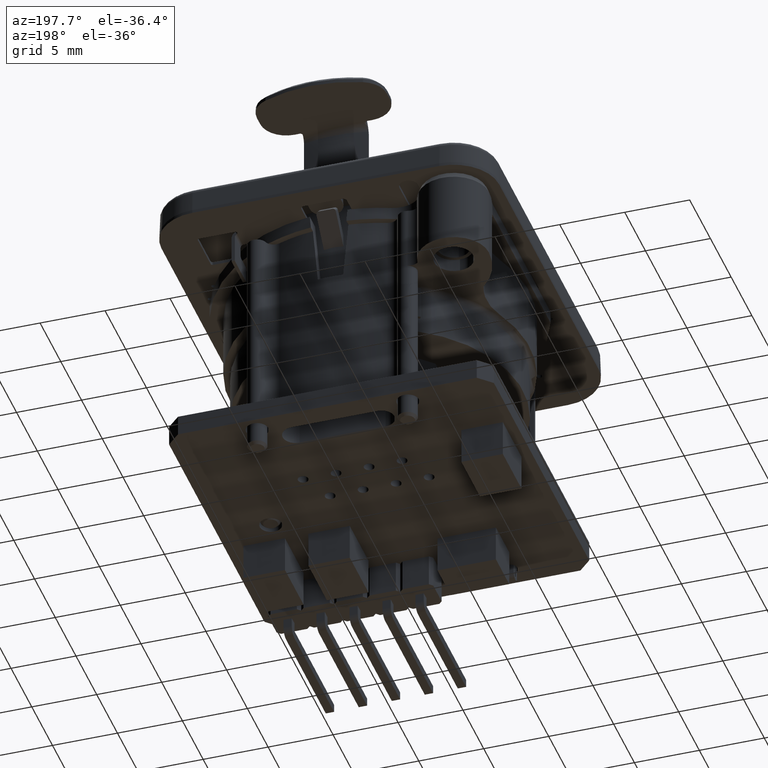
[diagram: clean part render]
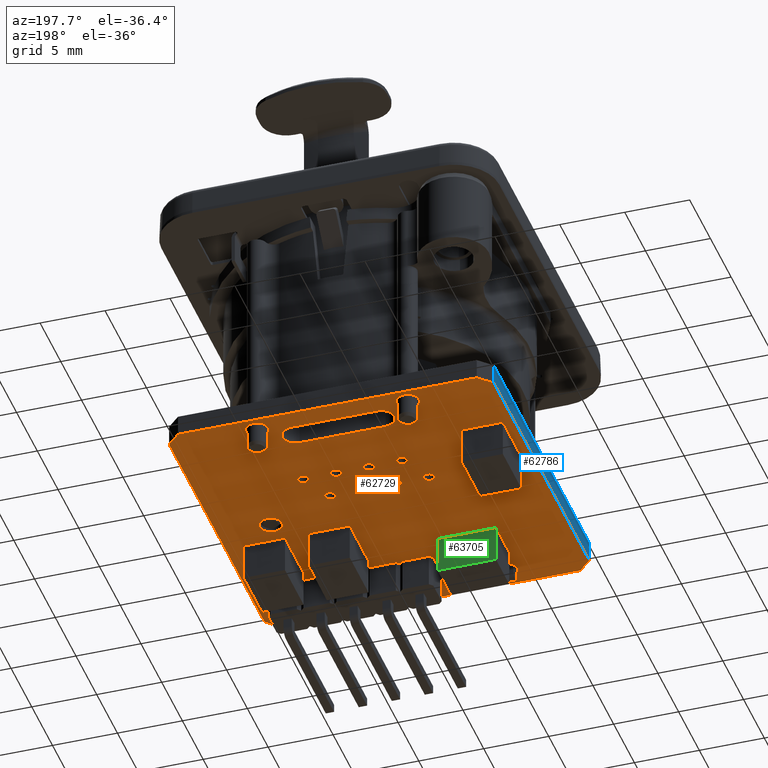
[diagram: same view with three faces highlighted in distinct colors, each labeled with its STEP entity id]
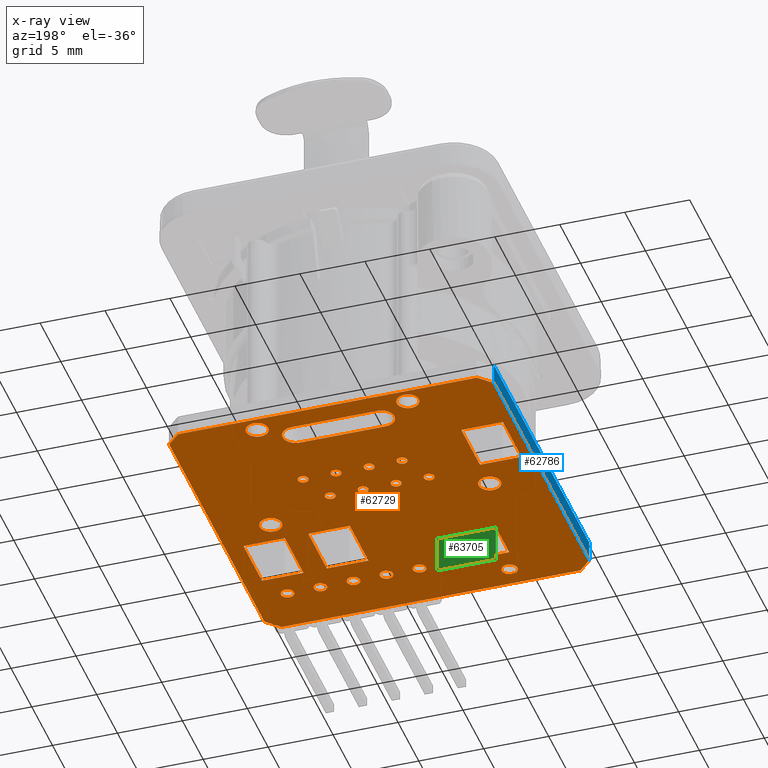
[diagram: x-ray of the same camera — body ghosted, the three highlighted faces saturated]
A machine part, auxiliary view with three faces highlighted in distinct colors.
The next image is the same camera in x-ray (body ghosted, the three faces saturated) — at least one of them is partly hidden behind the body in this view.
Their STEP definitions:

[orange] entity #62729 — the highlighted planar face has unit normal (0, 0, 1).
#61397=DIRECTION('',(-7.071067812296E-1,-7.071067811435E-1,0.E0));
#61398=VECTOR('',#61397,1.414213562287E0);
#61399=CARTESIAN_POINT('',(1.2491E1,-1.125600000012E1,-2.26E1));
#61400=LINE('',#61399,#61398);
#61401=DIRECTION('',(0.E0,1.E0,0.E0));
#61402=VECTOR('',#61401,2.300000000028E1);
#61403=CARTESIAN_POINT('',(1.2491E1,-1.125600000012E1,-2.26E1));
#61404=LINE('',#61403,#61402);
#61405=DIRECTION('',(-7.071067811435E-1,7.071067812296E-1,0.E0));
#61406=VECTOR('',#61405,1.414213562059E0);
#61407=CARTESIAN_POINT('',(1.2491E1,1.174400000016E1,-2.26E1));
#61408=LINE('',#61407,#61406);
#61409=DIRECTION('',(-1.E0,0.E0,0.E0));
#61410=VECTOR('',#61409,2.300000000028E1);
#61411=CARTESIAN_POINT('',(1.149100000028E1,1.2744E1,-2.26E1));
#61412=LINE('',#61411,#61410);
#61413=DIRECTION('',(-7.071067812296E-1,-7.071067811435E-1,0.E0));
#61414=VECTOR('',#61413,1.414213562287E0);
#61415=CARTESIAN_POINT('',(-1.1509E1,1.2744E1,-2.26E1));
#61416=LINE('',#61415,#61414);
#61417=DIRECTION('',(0.E0,-1.E0,0.E0));
#61418=VECTOR('',#61417,2.300000000028E1);
#61419=CARTESIAN_POINT('',(-1.2509E1,1.174400000012E1,-2.26E1));
#61420=LINE('',#61419,#61418);
#61421=DIRECTION('',(7.071067811437E-1,-7.071067812294E-1,0.E0));
#61422=VECTOR('',#61421,1.414213562058E0);
#61423=CARTESIAN_POINT('',(-1.2509E1,-1.125600000016E1,-2.26E1));
#61424=LINE('',#61423,#61422);
#61425=DIRECTION('',(1.E0,0.E0,0.E0));
#61426=VECTOR('',#61425,2.300000000028E1);
#61427=CARTESIAN_POINT('',(-1.150900000028E1,-1.2256E1,-2.26E1));
#61428=LINE('',#61427,#61426);
#61429=DIRECTION('',(1.E0,0.E0,0.E0));
#61430=VECTOR('',#61429,6.599940000221E0);
#61431=CARTESIAN_POINT('',(-3.309930000181E0,9.049959999996E0,-2.26E1));
#61432=LINE('',#61431,#61430);
#61433=CARTESIAN_POINT('',(-3.309930989898E0,1.005297098971E1,-2.26E1));
#61434=DIRECTION('',(0.E0,0.E0,1.E0));
#61435=DIRECTION('',(-9.999999999995E-1,-9.808002866725E-7,0.E0));
#61436=AXIS2_PLACEMENT_3D('',#61433,#61434,#61435);
#61438=CARTESIAN_POINT('',(-3.309930989898E0,1.005297098971E1,-2.26E1));
#61439=DIRECTION('',(0.E0,0.E0,-1.E0));
#61440=DIRECTION('',(-9.999999999995E-1,-9.808002299998E-7,0.E0));
#61441=AXIS2_PLACEMENT_3D('',#61438,#61439,#61440);
#61443=DIRECTION('',(-9.999999036746E-1,-4.389200399742E-4,0.E0));
#61444=VECTOR('',#61443,6.734003167075E0);
#61445=CARTESIAN_POINT('',(3.290009984323E0,1.104993802056E1,-2.26E1));
#61446=LINE('',#61445,#61444);
#61447=CARTESIAN_POINT('',(3.290010989711E0,1.004994901028E1,-2.26E1));
#61448=DIRECTION('',(0.E0,0.E0,-1.E0));
#61449=DIRECTION('',(-1.005398978406E-6,9.999999999995E-1,0.E0));
#61450=AXIS2_PLACEMENT_3D('',#61447,#61448,#61449);
#61452=CARTESIAN_POINT('',(3.290010989711E0,1.004994901028E1,-2.26E1));
#61453=DIRECTION('',(0.E0,0.E0,-1.E0));
#61454=DIRECTION('',(9.999999999995E-1,9.899275929603E-7,0.E0));
#61455=AXIS2_PLACEMENT_3D('',#61452,#61453,#61454);
#61457=CARTESIAN_POINT('',(5.79E0,1.15E1,-2.26E1));
#61458=DIRECTION('',(0.E0,0.E0,-1.E0));
#61459=DIRECTION('',(-1.E0,1.337492208490E-13,0.E0));
#61460=AXIS2_PLACEMENT_3D('',#61457,#61458,#61459);
#61462=CARTESIAN_POINT('',(5.79E0,1.15E1,-2.26E1));
#61463=DIRECTION('',(0.E0,0.E0,-1.E0));
#61464=DIRECTION('',(1.E0,1.337492208490E-13,0.E0));
#61465=AXIS2_PLACEMENT_3D('',#61462,#61463,#61464);
#61467=CARTESIAN_POINT('',(-5.81E0,1.15E1,-2.26E1));
#61468=DIRECTION('',(0.E0,0.E0,-1.E0));
#61469=DIRECTION('',(-1.E0,1.337492208490E-13,0.E0));
#61470=AXIS2_PLACEMENT_3D('',#61467,#61468,#61469);
#61472=CARTESIAN_POINT('',(-5.81E0,1.15E1,-2.26E1));
#61473=DIRECTION('',(0.E0,0.E0,-1.E0));
#61474=DIRECTION('',(1.E0,1.337492208490E-13,0.E0));
#61475=AXIS2_PLACEMENT_3D('',#61472,#61473,#61474);
#61477=CARTESIAN_POINT('',(-3.390000000001E-1,-8.436E0,-2.26E1));
#61478=DIRECTION('',(0.E0,0.E0,-1.E0));
#61479=DIRECTION('',(1.E0,0.E0,0.E0));
#61480=AXIS2_PLACEMENT_3D('',#61477,#61478,#61479);
#61482=CARTESIAN_POINT('',(-3.390000000001E-1,-8.436E0,-2.26E1));
#61483=DIRECTION('',(0.E0,0.E0,-1.E0));
#61484=DIRECTION('',(-1.E0,2.842170943040E-13,0.E0));
#61485=AXIS2_PLACEMENT_3D('',#61482,#61483,#61484);
#61487=CARTESIAN_POINT('',(-6.61E0,-1.055E1,-2.26E1));
#61488=DIRECTION('',(0.E0,0.E0,-1.E0));
#61489=DIRECTION('',(-1.E0,2.842170943041E-13,0.E0));
#61490=AXIS2_PLACEMENT_3D('',#61487,#61488,#61489);
#61492=CARTESIAN_POINT('',(-6.61E0,-1.055E1,-2.26E1));
#61493=DIRECTION('',(0.E0,0.E0,-1.E0));
#61494=DIRECTION('',(1.E0,-4.736951571734E-14,0.E0));
#61495=AXIS2_PLACEMENT_3D('',#61492,#61493,#61494);
#61497=CARTESIAN_POINT('',(-8.44E0,1.989519660128E-13,-2.26E1));
#61498=DIRECTION('',(0.E0,0.E0,-1.E0));
#61499=DIRECTION('',(-1.E0,-6.687461042448E-14,0.E0));
#61500=AXIS2_PLACEMENT_3D('',#61497,#61498,#61499);
#61502=CARTESIAN_POINT('',(-8.44E0,1.421085471520E-13,-2.26E1));
#61503=DIRECTION('',(0.E0,0.E0,-1.E0));
#61504=DIRECTION('',(1.E0,0.E0,0.E0));
#61505=AXIS2_PLACEMENT_3D('',#61502,#61503,#61504);
#61507=CARTESIAN_POINT('',(8.41E0,1.421085471520E-13,-2.26E1));
#61508=DIRECTION('',(0.E0,0.E0,-1.E0));
#61509=DIRECTION('',(-1.E0,0.E0,0.E0));
#61510=AXIS2_PLACEMENT_3D('',#61507,#61508,#61509);
#61512=CARTESIAN_POINT('',(8.41E0,1.421085471520E-13,-2.26E1));
#61513=DIRECTION('',(0.E0,0.E0,-1.E0));
#61514=DIRECTION('',(1.E0,0.E0,0.E0));
#61515=AXIS2_PLACEMENT_3D('',#61512,#61513,#61514);
#61517=CARTESIAN_POINT('',(-4.45E0,2.11E0,-2.26E1));
#61518=DIRECTION('',(0.E0,0.E0,-1.E0));
#61519=DIRECTION('',(1.E0,0.E0,0.E0));
#61520=AXIS2_PLACEMENT_3D('',#61517,#61518,#61519);
#61522=CARTESIAN_POINT('',(-4.45E0,2.11E0,-2.26E1));
#61523=DIRECTION('',(0.E0,0.E0,-1.E0));
#61524=DIRECTION('',(-1.E0,-2.131628207280E-13,0.E0));
#61525=AXIS2_PLACEMENT_3D('',#61522,#61523,#61524);
#61527=CARTESIAN_POINT('',(-3.18E0,4.65E0,-2.26E1));
#61528=DIRECTION('',(0.E0,0.E0,-1.E0));
#61529=DIRECTION('',(-1.E0,0.E0,0.E0));
#61530=AXIS2_PLACEMENT_3D('',#61527,#61528,#61529);
#61532=CARTESIAN_POINT('',(-3.18E0,4.65E0,-2.26E1));
#61533=DIRECTION('',(0.E0,0.E0,-1.E0));
#61534=DIRECTION('',(1.E0,0.E0,0.E0));
#61535=AXIS2_PLACEMENT_3D('',#61532,#61533,#61534);
#61537=CARTESIAN_POINT('',(-1.91E0,2.11E0,-2.26E1));
#61538=DIRECTION('',(0.E0,0.E0,-1.E0));
#61539=DIRECTION('',(1.E0,0.E0,0.E0));
#61540=AXIS2_PLACEMENT_3D('',#61537,#61538,#61539);
#61542=CARTESIAN_POINT('',(-1.91E0,2.11E0,-2.26E1));
#61543=DIRECTION('',(0.E0,0.E0,-1.E0));
#61544=DIRECTION('',(-1.E0,0.E0,0.E0));
#61545=AXIS2_PLACEMENT_3D('',#61542,#61543,#61544);
#61547=CARTESIAN_POINT('',(-6.400000000001E-1,4.65E0,-2.26E1));
#61548=DIRECTION('',(0.E0,0.E0,-1.E0));
#61549=DIRECTION('',(-1.E0,-1.421085471520E-13,0.E0));
#61550=AXIS2_PLACEMENT_3D('',#61547,#61548,#61549);
#61552=CARTESIAN_POINT('',(-6.400000000001E-1,4.65E0,-2.26E1));
#61553=DIRECTION('',(0.E0,0.E0,-1.E0));
#61554=DIRECTION('',(1.E0,1.421085471520E-13,0.E0));
#61555=AXIS2_PLACEMENT_3D('',#61552,#61553,#61554);
#61557=CARTESIAN_POINT('',(6.299999999999E-1,2.11E0,-2.26E1));
#61558=DIRECTION('',(0.E0,0.E0,-1.E0));
#61559=DIRECTION('',(-1.E0,0.E0,0.E0));
#61560=AXIS2_PLACEMENT_3D('',#61557,#61558,#61559);
#61562=CARTESIAN_POINT('',(6.299999999999E-1,2.11E0,-2.26E1));
#61563=DIRECTION('',(0.E0,0.E0,-1.E0));
#61564=DIRECTION('',(1.E0,0.E0,0.E0));
#61565=AXIS2_PLACEMENT_3D('',#61562,#61563,#61564);
#61567=CARTESIAN_POINT('',(3.17E0,2.11E0,-2.26E1));
#61568=DIRECTION('',(0.E0,0.E0,-1.E0));
#61569=DIRECTION('',(-1.E0,-2.131628207280E-13,0.E0));
#61570=AXIS2_PLACEMENT_3D('',#61567,#61568,#61569);
#61572=CARTESIAN_POINT('',(3.17E0,2.11E0,-2.26E1));
#61573=DIRECTION('',(0.E0,0.E0,-1.E0));
#61574=DIRECTION('',(1.E0,0.E0,0.E0));
#61575=AXIS2_PLACEMENT_3D('',#61572,#61573,#61574);
#61577=CARTESIAN_POINT('',(1.9E0,4.65E0,-2.26E1));
#61578=DIRECTION('',(0.E0,0.E0,-1.E0));
#61579=DIRECTION('',(-1.E0,1.421085471520E-13,0.E0));
#61580=AXIS2_PLACEMENT_3D('',#61577,#61578,#61579);
#61582=CARTESIAN_POINT('',(1.9E0,4.65E0,-2.26E1));
#61583=DIRECTION('',(0.E0,0.E0,-1.E0));
#61584=DIRECTION('',(1.E0,0.E0,0.E0));
#61585=AXIS2_PLACEMENT_3D('',#61582,#61583,#61584);
#61587=CARTESIAN_POINT('',(4.44E0,4.65E0,-2.26E1));
#61588=DIRECTION('',(0.E0,0.E0,-1.E0));
#61589=DIRECTION('',(-1.E0,0.E0,0.E0));
#61590=AXIS2_PLACEMENT_3D('',#61587,#61588,#61589);
#61592=CARTESIAN_POINT('',(4.44E0,4.65E0,-2.26E1));
#61593=DIRECTION('',(0.E0,0.E0,-1.E0));
#61594=DIRECTION('',(1.E0,1.421085471520E-13,0.E0));
#61595=AXIS2_PLACEMENT_3D('',#61592,#61593,#61594);
#61597=CARTESIAN_POINT('',(2.201E0,-8.436E0,-2.26E1));
#61598=DIRECTION('',(0.E0,0.E0,-1.E0));
#61599=DIRECTION('',(-1.E0,0.E0,0.E0));
#61600=AXIS2_PLACEMENT_3D('',#61597,#61598,#61599);
#61602=CARTESIAN_POINT('',(2.201E0,-8.436E0,-2.26E1));
#61603=DIRECTION('',(0.E0,0.E0,-1.E0));
#61604=DIRECTION('',(1.E0,0.E0,0.E0));
#61605=AXIS2_PLACEMENT_3D('',#61602,#61603,#61604);
#61607=CARTESIAN_POINT('',(4.741E0,-8.436E0,-2.26E1));
#61608=DIRECTION('',(0.E0,0.E0,-1.E0));
#61609=DIRECTION('',(-1.E0,0.E0,0.E0));
#61610=AXIS2_PLACEMENT_3D('',#61607,#61608,#61609);
#61612=CARTESIAN_POINT('',(4.741E0,-8.436E0,-2.26E1));
#61613=DIRECTION('',(0.E0,0.E0,-1.E0));
#61614=DIRECTION('',(1.E0,0.E0,0.E0));
#61615=AXIS2_PLACEMENT_3D('',#61612,#61613,#61614);
#61617=CARTESIAN_POINT('',(7.281E0,-8.436E0,-2.26E1));
#61618=DIRECTION('',(0.E0,0.E0,-1.E0));
#61619=DIRECTION('',(-1.E0,5.684341886081E-14,0.E0));
#61620=AXIS2_PLACEMENT_3D('',#61617,#61618,#61619);
#61622=CARTESIAN_POINT('',(7.281E0,-8.436E0,-2.26E1));
#61623=DIRECTION('',(0.E0,0.E0,-1.E0));
#61624=DIRECTION('',(1.E0,0.E0,0.E0));
#61625=AXIS2_PLACEMENT_3D('',#61622,#61623,#61624);
#61627=CARTESIAN_POINT('',(9.821E0,-8.436E0,-2.26E1));
#61628=DIRECTION('',(0.E0,0.E0,-1.E0));
#61629=DIRECTION('',(-1.E0,-1.705302565824E-13,0.E0));
#61630=AXIS2_PLACEMENT_3D('',#61627,#61628,#61629);
#61632=CARTESIAN_POINT('',(9.821E0,-8.436E0,-2.26E1));
#61633=DIRECTION('',(0.E0,0.E0,-1.E0));
#61634=DIRECTION('',(1.E0,0.E0,0.E0));
#61635=AXIS2_PLACEMENT_3D('',#61632,#61633,#61634);
#61637=DIRECTION('',(1.E0,0.E0,0.E0));
#61638=VECTOR('',#61637,3.2E0);
#61639=CARTESIAN_POINT('',(7.917E0,-1.866E0,-2.26E1));
#61640=LINE('',#61639,#61638);
#61641=DIRECTION('',(0.E0,-1.E0,0.E0));
#61642=VECTOR('',#61641,4.5E0);
#61643=CARTESIAN_POINT('',(1.1117E1,-1.866E0,-2.26E1));
#61644=LINE('',#61643,#61642);
#61645=DIRECTION('',(-1.E0,0.E0,0.E0));
#61646=VECTOR('',#61645,3.2E0);
#61647=CARTESIAN_POINT('',(1.1117E1,-6.366E0,-2.26E1));
#61648=LINE('',#61647,#61646);
#61649=DIRECTION('',(0.E0,1.E0,0.E0));
#61650=VECTOR('',#61649,4.5E0);
#61651=CARTESIAN_POINT('',(7.917E0,-6.366E0,-2.26E1));
#61652=LINE('',#61651,#61650);
#61653=DIRECTION('',(1.E0,0.E0,0.E0));
#61654=VECTOR('',#61653,3.2E0);
#61655=CARTESIAN_POINT('',(2.927E0,-1.866E0,-2.26E1));
#61656=LINE('',#61655,#61654);
#61657=DIRECTION('',(0.E0,-1.E0,0.E0));
#61658=VECTOR('',#61657,4.5E0);
#61659=CARTESIAN_POINT('',(6.127E0,-1.866E0,-2.26E1));
#61660=LINE('',#61659,#61658);
#61661=DIRECTION('',(-1.E0,0.E0,0.E0));
#61662=VECTOR('',#61661,3.2E0);
#61663=CARTESIAN_POINT('',(6.127E0,-6.366E0,-2.26E1));
#61664=LINE('',#61663,#61662);
#61665=DIRECTION('',(0.E0,1.E0,0.E0));
#61666=VECTOR('',#61665,4.5E0);
#61667=CARTESIAN_POINT('',(2.927E0,-6.366E0,-2.26E1));
#61668=LINE('',#61667,#61666);
#61669=DIRECTION('',(0.E0,-1.E0,0.E0));
#61670=VECTOR('',#61669,3.205E0);
#61671=CARTESIAN_POINT('',(-2.718764615385E0,-5.316E0,-2.26E1));
#61672=LINE('',#61671,#61670);
#61673=DIRECTION('',(-1.E0,0.E0,0.E0));
#61674=VECTOR('',#61673,4.5E0);
#61675=CARTESIAN_POINT('',(-2.718764615385E0,-8.521E0,-2.26E1));
#61676=LINE('',#61675,#61674);
#61677=DIRECTION('',(0.E0,1.E0,0.E0));
#61678=VECTOR('',#61677,3.205E0);
#61679=CARTESIAN_POINT('',(-7.218764615385E0,-8.521E0,-2.26E1));
#61680=LINE('',#61679,#61678);
#61681=DIRECTION('',(1.E0,0.E0,0.E0));
#61682=VECTOR('',#61681,4.5E0);
#61683=CARTESIAN_POINT('',(-7.218764615385E0,-5.316E0,-2.26E1));
#61684=LINE('',#61683,#61682);
#61685=DIRECTION('',(0.E0,-1.E0,0.E0));
#61686=VECTOR('',#61685,4.5E0);
#61687=CARTESIAN_POINT('',(-8.463764615385E0,6.934E0,-2.26E1));
#61688=LINE('',#61687,#61686);
#61689=DIRECTION('',(-1.E0,0.E0,0.E0));
#61690=VECTOR('',#61689,3.2E0);
#61691=CARTESIAN_POINT('',(-8.463764615385E0,2.434E0,-2.26E1));
#61692=LINE('',#61691,#61690);
#61693=DIRECTION('',(0.E0,1.E0,0.E0));
#61694=VECTOR('',#61693,4.5E0);
#61695=CARTESIAN_POINT('',(-1.166376461538E1,2.434E0,-2.26E1));
#61696=LINE('',#61695,#61694);
#61697=DIRECTION('',(1.E0,0.E0,0.E0));
#61698=VECTOR('',#61697,3.2E0);
#61699=CARTESIAN_POINT('',(-1.166376461538E1,6.934E0,-2.26E1));
#61700=LINE('',#61699,#61698);
#62265=CARTESIAN_POINT('',(1.2491E1,-1.125600000012E1,-2.26E1));
#62266=CARTESIAN_POINT('',(1.1491E1,-1.2256E1,-2.26E1));
#62267=VERTEX_POINT('',#62265);
#62268=VERTEX_POINT('',#62266);
#62269=CARTESIAN_POINT('',(3.290009984323E0,1.104993802056E1,-2.26E1));
#62270=CARTESIAN_POINT('',(-3.443992534096E0,1.104698233162E1,-2.26E1));
#62271=VERTEX_POINT('',#62269);
#62272=VERTEX_POINT('',#62270);
#62273=CARTESIAN_POINT('',(-4.312941979608E0,1.005297000595E1,-2.26E1));
#62274=CARTESIAN_POINT('',(-3.309930000181E0,9.049959999996E0,-2.26E1));
#62275=VERTEX_POINT('',#62273);
#62276=VERTEX_POINT('',#62274);
#62277=CARTESIAN_POINT('',(3.290010000041E0,9.049959999996E0,-2.26E1));
#62278=VERTEX_POINT('',#62277);
#62293=CARTESIAN_POINT('',(1.2491E1,1.174400000016E1,-2.26E1));
#62294=VERTEX_POINT('',#62293);
#62295=CARTESIAN_POINT('',(1.149100000028E1,1.2744E1,-2.26E1));
#62296=VERTEX_POINT('',#62295);
#62297=CARTESIAN_POINT('',(-1.1509E1,1.2744E1,-2.26E1));
#62298=VERTEX_POINT('',#62297);
#62299=CARTESIAN_POINT('',(-1.2509E1,1.174400000012E1,-2.26E1));
#62300=VERTEX_POINT('',#62299);
#62301=CARTESIAN_POINT('',(-1.2509E1,-1.125600000016E1,-2.26E1));
#62302=VERTEX_POINT('',#62301);
#62303=CARTESIAN_POINT('',(-1.150900000028E1,-1.2256E1,-2.26E1));
#62304=VERTEX_POINT('',#62303);
#62305=CARTESIAN_POINT('',(4.289999999991E0,1.004995000019E1,-2.26E1));
#62306=VERTEX_POINT('',#62305);
#62307=CARTESIAN_POINT('',(4.94E0,1.15E1,-2.26E1));
#62308=CARTESIAN_POINT('',(6.64E0,1.15E1,-2.26E1));
#62309=VERTEX_POINT('',#62307);
#62310=VERTEX_POINT('',#62308);
#62311=CARTESIAN_POINT('',(-6.66E0,1.15E1,-2.26E1));
#62312=CARTESIAN_POINT('',(-4.96E0,1.15E1,-2.26E1));
#62313=VERTEX_POINT('',#62311);
#62314=VERTEX_POINT('',#62312);
#62315=CARTESIAN_POINT('',(1.609999999999E-1,-8.436E0,-2.26E1));
#62316=CARTESIAN_POINT('',(-8.390000000001E-1,-8.436E0,-2.26E1));
#62317=VERTEX_POINT('',#62315);
#62318=VERTEX_POINT('',#62316);
#62319=CARTESIAN_POINT('',(-7.21E0,-1.055E1,-2.26E1));
#62320=CARTESIAN_POINT('',(-6.01E0,-1.055E1,-2.26E1));
#62321=VERTEX_POINT('',#62319);
#62322=VERTEX_POINT('',#62320);
#62323=CARTESIAN_POINT('',(-9.29E0,1.421085471520E-13,-2.26E1));
#62324=CARTESIAN_POINT('',(-7.59E0,1.422792555114E-13,-2.26E1));
#62325=VERTEX_POINT('',#62323);
#62326=VERTEX_POINT('',#62324);
#62327=CARTESIAN_POINT('',(7.56E0,1.421085471520E-13,-2.26E1));
#62328=CARTESIAN_POINT('',(9.26E0,1.422126421299E-13,-2.26E1));
#62329=VERTEX_POINT('',#62327);
#62330=VERTEX_POINT('',#62328);
#62331=CARTESIAN_POINT('',(-4.05E0,2.11E0,-2.26E1));
#62332=CARTESIAN_POINT('',(-4.85E0,2.11E0,-2.26E1));
#62333=VERTEX_POINT('',#62331);
#62334=VERTEX_POINT('',#62332);
#62335=CARTESIAN_POINT('',(-3.58E0,4.65E0,-2.26E1));
#62336=CARTESIAN_POINT('',(-2.78E0,4.65E0,-2.26E1));
#62337=VERTEX_POINT('',#62335);
#62338=VERTEX_POINT('',#62336);
#62339=CARTESIAN_POINT('',(-1.51E0,2.11E0,-2.26E1));
#62340=CARTESIAN_POINT('',(-2.31E0,2.11E0,-2.26E1));
#62341=VERTEX_POINT('',#62339);
#62342=VERTEX_POINT('',#62340);
#62343=CARTESIAN_POINT('',(-1.04E0,4.65E0,-2.26E1));
#62344=CARTESIAN_POINT('',(-2.400000000001E-1,4.65E0,-2.26E1));
#62345=VERTEX_POINT('',#62343);
#62346=VERTEX_POINT('',#62344);
#62347=CARTESIAN_POINT('',(2.299999999999E-1,2.11E0,-2.26E1));
#62348=CARTESIAN_POINT('',(1.03E0,2.11E0,-2.26E1));
#62349=VERTEX_POINT('',#62347);
#62350=VERTEX_POINT('',#62348);
#62351=CARTESIAN_POINT('',(2.77E0,2.11E0,-2.26E1));
#62352=CARTESIAN_POINT('',(3.57E0,2.11E0,-2.26E1));
#62353=VERTEX_POINT('',#62351);
#62354=VERTEX_POINT('',#62352);
#62355=CARTESIAN_POINT('',(1.5E0,4.65E0,-2.26E1));
#62356=CARTESIAN_POINT('',(2.3E0,4.65E0,-2.26E1));
#62357=VERTEX_POINT('',#62355);
#62358=VERTEX_POINT('',#62356);
#62359=CARTESIAN_POINT('',(4.04E0,4.65E0,-2.26E1));
#62360=CARTESIAN_POINT('',(4.84E0,4.65E0,-2.26E1));
#62361=VERTEX_POINT('',#62359);
#62362=VERTEX_POINT('',#62360);
#62363=CARTESIAN_POINT('',(1.701E0,-8.436E0,-2.26E1));
#62364=CARTESIAN_POINT('',(2.701E0,-8.436E0,-2.26E1));
#62365=VERTEX_POINT('',#62363);
#62366=VERTEX_POINT('',#62364);
#62367=CARTESIAN_POINT('',(4.241E0,-8.436E0,-2.26E1));
#62368=CARTESIAN_POINT('',(5.241E0,-8.436E0,-2.26E1));
#62369=VERTEX_POINT('',#62367);
#62370=VERTEX_POINT('',#62368);
#62371=CARTESIAN_POINT('',(6.781E0,-8.436E0,-2.26E1));
#62372=CARTESIAN_POINT('',(7.781E0,-8.436E0,-2.26E1));
#62373=VERTEX_POINT('',#62371);
#62374=VERTEX_POINT('',#62372);
#62375=CARTESIAN_POINT('',(9.321E0,-8.436E0,-2.26E1));
#62376=CARTESIAN_POINT('',(1.0321E1,-8.436E0,-2.26E1));
#62377=VERTEX_POINT('',#62375);
#62378=VERTEX_POINT('',#62376);
#62497=CARTESIAN_POINT('',(7.917E0,-1.866E0,-2.26E1));
#62498=CARTESIAN_POINT('',(1.1117E1,-1.866E0,-2.26E1));
#62499=VERTEX_POINT('',#62497);
#62500=VERTEX_POINT('',#62498);
#62501=CARTESIAN_POINT('',(1.1117E1,-6.366E0,-2.26E1));
#62502=VERTEX_POINT('',#62501);
#62503=CARTESIAN_POINT('',(7.917E0,-6.366E0,-2.26E1));
#62504=VERTEX_POINT('',#62503);
#62505=CARTESIAN_POINT('',(2.927E0,-1.866E0,-2.26E1));
#62506=CARTESIAN_POINT('',(6.127E0,-1.866E0,-2.26E1));
#62507=VERTEX_POINT('',#62505);
#62508=VERTEX_POINT('',#62506);
#62509=CARTESIAN_POINT('',(6.127E0,-6.366E0,-2.26E1));
#62510=VERTEX_POINT('',#62509);
#62511=CARTESIAN_POINT('',(2.927E0,-6.366E0,-2.26E1));
#62512=VERTEX_POINT('',#62511);
#62513=CARTESIAN_POINT('',(-2.718764615385E0,-5.316E0,-2.26E1));
#62514=CARTESIAN_POINT('',(-2.718764615385E0,-8.521E0,-2.26E1));
#62515=VERTEX_POINT('',#62513);
#62516=VERTEX_POINT('',#62514);
#62517=CARTESIAN_POINT('',(-7.218764615385E0,-8.521E0,-2.26E1));
#62518=VERTEX_POINT('',#62517);
#62519=CARTESIAN_POINT('',(-7.218764615385E0,-5.316E0,-2.26E1));
#62520=VERTEX_POINT('',#62519);
#62521=CARTESIAN_POINT('',(-8.463764615385E0,6.934E0,-2.26E1));
#62522=CARTESIAN_POINT('',(-8.463764615385E0,2.434E0,-2.26E1));
#62523=VERTEX_POINT('',#62521);
#62524=VERTEX_POINT('',#62522);
#62525=CARTESIAN_POINT('',(-1.166376461538E1,2.434E0,-2.26E1));
#62526=VERTEX_POINT('',#62525);
#62527=CARTESIAN_POINT('',(-1.166376461538E1,6.934E0,-2.26E1));
#62528=VERTEX_POINT('',#62527);
#62545=CARTESIAN_POINT('',(-2.34569E2,-2.47816E2,-2.26E1));
#62546=DIRECTION('',(0.E0,0.E0,1.E0));
#62547=DIRECTION('',(-1.E0,0.E0,0.E0));
#62548=AXIS2_PLACEMENT_3D('',#62545,#62546,#62547);
#62549=PLANE('',#62548);
#62551=ORIENTED_EDGE('',*,*,#62550,.F.);
#62553=ORIENTED_EDGE('',*,*,#62552,.T.);
#62555=ORIENTED_EDGE('',*,*,#62554,.T.);
#62557=ORIENTED_EDGE('',*,*,#62556,.T.);
#62559=ORIENTED_EDGE('',*,*,#62558,.T.);
#62561=ORIENTED_EDGE('',*,*,#62560,.T.);
#62563=ORIENTED_EDGE('',*,*,#62562,.T.);
#62565=ORIENTED_EDGE('',*,*,#62564,.T.);
#62566=EDGE_LOOP('',(#62551,#62553,#62555,#62557,#62559,#62561,#62563,#62565));
#62567=FACE_OUTER_BOUND('',#62566,.F.);
#62569=ORIENTED_EDGE('',*,*,#62568,.F.);
#62571=ORIENTED_EDGE('',*,*,#62570,.F.);
#62573=ORIENTED_EDGE('',*,*,#62572,.T.);
#62575=ORIENTED_EDGE('',*,*,#62574,.F.);
#62577=ORIENTED_EDGE('',*,*,#62576,.T.);
#62579=ORIENTED_EDGE('',*,*,#62578,.T.);
#62580=EDGE_LOOP('',(#62569,#62571,#62573,#62575,#62577,#62579));
#62581=FACE_BOUND('',#62580,.F.);
#62583=ORIENTED_EDGE('',*,*,#62582,.T.);
#62585=ORIENTED_EDGE('',*,*,#62584,.T.);
#62586=EDGE_LOOP('',(#62583,#62585));
#62587=FACE_BOUND('',#62586,.F.);
#62589=ORIENTED_EDGE('',*,*,#62588,.T.);
#62591=ORIENTED_EDGE('',*,*,#62590,.T.);
#62592=EDGE_LOOP('',(#62589,#62591));
#62593=FACE_BOUND('',#62592,.F.);
#62595=ORIENTED_EDGE('',*,*,#62594,.T.);
#62597=ORIENTED_EDGE('',*,*,#62596,.T.);
#62598=EDGE_LOOP('',(#62595,#62597));
#62599=FACE_BOUND('',#62598,.F.);
#62601=ORIENTED_EDGE('',*,*,#62600,.T.);
#62603=ORIENTED_EDGE('',*,*,#62602,.T.);
#62604=EDGE_LOOP('',(#62601,#62603));
#62605=FACE_BOUND('',#62604,.F.);
#62607=ORIENTED_EDGE('',*,*,#62606,.T.);
#62609=ORIENTED_EDGE('',*,*,#62608,.T.);
#62610=EDGE_LOOP('',(#62607,#62609));
#62611=FACE_BOUND('',#62610,.F.);
#62613=ORIENTED_EDGE('',*,*,#62612,.T.);
#62615=ORIENTED_EDGE('',*,*,#62614,.T.);
#62616=EDGE_LOOP('',(#62613,#62615));
#62617=FACE_BOUND('',#62616,.F.);
#62619=ORIENTED_EDGE('',*,*,#62618,.T.);
#62621=ORIENTED_EDGE('',*,*,#62620,.T.);
#62622=EDGE_LOOP('',(#62619,#62621));
#62623=FACE_BOUND('',#62622,.F.);
#62625=ORIENTED_EDGE('',*,*,#62624,.T.);
#62627=ORIENTED_EDGE('',*,*,#62626,.T.);
#62628=EDGE_LOOP('',(#62625,#62627));
#62629=FACE_BOUND('',#62628,.F.);
#62631=ORIENTED_EDGE('',*,*,#62630,.T.);
#62633=ORIENTED_EDGE('',*,*,#62632,.T.);
#62634=EDGE_LOOP('',(#62631,#62633));
#62635=FACE_BOUND('',#62634,.F.);
#62637=ORIENTED_EDGE('',*,*,#62636,.T.);
#62639=ORIENTED_EDGE('',*,*,#62638,.T.);
#62640=EDGE_LOOP('',(#62637,#62639));
#62641=FACE_BOUND('',#62640,.F.);
#62643=ORIENTED_EDGE('',*,*,#62642,.T.);
#62645=ORIENTED_EDGE('',*,*,#62644,.T.);
#62646=EDGE_LOOP('',(#62643,#62645));
#62647=FACE_BOUND('',#62646,.F.);
#62649=ORIENTED_EDGE('',*,*,#62648,.T.);
#62651=ORIENTED_EDGE('',*,*,#62650,.T.);
#62652=EDGE_LOOP('',(#62649,#62651));
#62653=FACE_BOUND('',#62652,.F.);
#62655=ORIENTED_EDGE('',*,*,#62654,.T.);
#62657=ORIENTED_EDGE('',*,*,#62656,.T.);
#62658=EDGE_LOOP('',(#62655,#62657));
#62659=FACE_BOUND('',#62658,.F.);
#62661=ORIENTED_EDGE('',*,*,#62660,.T.);
#62663=ORIENTED_EDGE('',*,*,#62662,.T.);
#62664=EDGE_LOOP('',(#62661,#62663));
#62665=FACE_BOUND('',#62664,.F.);
#62667=ORIENTED_EDGE('',*,*,#62666,.T.);
#62669=ORIENTED_EDGE('',*,*,#62668,.T.);
#62670=EDGE_LOOP('',(#62667,#62669));
#62671=FACE_BOUND('',#62670,.F.);
#62673=ORIENTED_EDGE('',*,*,#62672,.T.);
#62675=ORIENTED_EDGE('',*,*,#62674,.T.);
#62676=EDGE_LOOP('',(#62673,#62675));
#62677=FACE_BOUND('',#62676,.F.);
#62679=ORIENTED_EDGE('',*,*,#62678,.T.);
#62681=ORIENTED_EDGE('',*,*,#62680,.T.);
#62682=EDGE_LOOP('',(#62679,#62681));
#62683=FACE_BOUND('',#62682,.F.);
#62685=ORIENTED_EDGE('',*,*,#62684,.T.);
#62686=ORIENTED_EDGE('',*,*,#62534,.T.);
#62687=EDGE_LOOP('',(#62685,#62686));
#62688=FACE_BOUND('',#62687,.F.);
#62690=ORIENTED_EDGE('',*,*,#62689,.T.);
#62692=ORIENTED_EDGE('',*,*,#62691,.T.);
#62694=ORIENTED_EDGE('',*,*,#62693,.T.);
#62696=ORIENTED_EDGE('',*,*,#62695,.T.);
#62697=EDGE_LOOP('',(#62690,#62692,#62694,#62696));
#62698=FACE_BOUND('',#62697,.F.);
#62700=ORIENTED_EDGE('',*,*,#62699,.T.);
#62702=ORIENTED_EDGE('',*,*,#62701,.T.);
#62704=ORIENTED_EDGE('',*,*,#62703,.T.);
#62706=ORIENTED_EDGE('',*,*,#62705,.T.);
#62707=EDGE_LOOP('',(#62700,#62702,#62704,#62706));
#62708=FACE_BOUND('',#62707,.F.);
#62710=ORIENTED_EDGE('',*,*,#62709,.T.);
#62712=ORIENTED_EDGE('',*,*,#62711,.T.);
#62714=ORIENTED_EDGE('',*,*,#62713,.T.);
#62716=ORIENTED_EDGE('',*,*,#62715,.T.);
#62717=EDGE_LOOP('',(#62710,#62712,#62714,#62716));
#62718=FACE_BOUND('',#62717,.F.);
#62720=ORIENTED_EDGE('',*,*,#62719,.T.);
#62722=ORIENTED_EDGE('',*,*,#62721,.T.);
#62724=ORIENTED_EDGE('',*,*,#62723,.T.);
#62726=ORIENTED_EDGE('',*,*,#62725,.T.);
#62727=EDGE_LOOP('',(#62720,#62722,#62724,#62726));
#62728=FACE_BOUND('',#62727,.F.);
#62729=ADVANCED_FACE('',(#62567,#62581,#62587,#62593,#62599,#62605,#62611,
#62617,#62623,#62629,#62635,#62641,#62647,#62653,#62659,#62665,#62671,#62677,
#62683,#62688,#62698,#62708,#62718,#62728),#62549,.F.);
#61437=CIRCLE('',#61436,1.003010989711E0);
#61442=CIRCLE('',#61441,1.003010989711E0);
#61451=CIRCLE('',#61450,9.999890102805E-1);
#61456=CIRCLE('',#61455,9.999890102805E-1);
#61461=CIRCLE('',#61460,8.5E-1);
#61466=CIRCLE('',#61465,8.5E-1);
#61471=CIRCLE('',#61470,8.5E-1);
#61476=CIRCLE('',#61475,8.5E-1);
#61481=CIRCLE('',#61480,5.E-1);
#61486=CIRCLE('',#61485,5.E-1);
#61491=CIRCLE('',#61490,6.E-1);
#61496=CIRCLE('',#61495,6.E-1);
#61501=CIRCLE('',#61500,8.5E-1);
#61506=CIRCLE('',#61505,8.5E-1);
#61511=CIRCLE('',#61510,8.5E-1);
#61516=CIRCLE('',#61515,8.5E-1);
#61521=CIRCLE('',#61520,4.E-1);
#61526=CIRCLE('',#61525,4.E-1);
#61531=CIRCLE('',#61530,4.E-1);
#61536=CIRCLE('',#61535,4.E-1);
#61541=CIRCLE('',#61540,4.E-1);
#61546=CIRCLE('',#61545,4.E-1);
#61551=CIRCLE('',#61550,4.E-1);
#61556=CIRCLE('',#61555,4.E-1);
#61561=CIRCLE('',#61560,4.E-1);
#61566=CIRCLE('',#61565,4.E-1);
#61571=CIRCLE('',#61570,4.E-1);
#61576=CIRCLE('',#61575,4.E-1);
#61581=CIRCLE('',#61580,4.E-1);
#61586=CIRCLE('',#61585,4.E-1);
#61591=CIRCLE('',#61590,4.E-1);
#61596=CIRCLE('',#61595,4.E-1);
#61601=CIRCLE('',#61600,5.E-1);
#61606=CIRCLE('',#61605,5.E-1);
#61611=CIRCLE('',#61610,5.E-1);
#61616=CIRCLE('',#61615,5.E-1);
#61621=CIRCLE('',#61620,5.E-1);
#61626=CIRCLE('',#61625,5.E-1);
#61631=CIRCLE('',#61630,5.E-1);
#61636=CIRCLE('',#61635,5.E-1);
#62534=EDGE_CURVE('',#62378,#62377,#61636,.T.);
#62550=EDGE_CURVE('',#62267,#62268,#61400,.T.);
#62552=EDGE_CURVE('',#62267,#62294,#61404,.T.);
#62554=EDGE_CURVE('',#62294,#62296,#61408,.T.);
#62556=EDGE_CURVE('',#62296,#62298,#61412,.T.);
#62558=EDGE_CURVE('',#62298,#62300,#61416,.T.);
#62560=EDGE_CURVE('',#62300,#62302,#61420,.T.);
#62562=EDGE_CURVE('',#62302,#62304,#61424,.T.);
#62564=EDGE_CURVE('',#62304,#62268,#61428,.T.);
#62568=EDGE_CURVE('',#62276,#62278,#61432,.T.);
#62570=EDGE_CURVE('',#62275,#62276,#61437,.T.);
#62572=EDGE_CURVE('',#62275,#62272,#61442,.T.);
#62574=EDGE_CURVE('',#62271,#62272,#61446,.T.);
#62576=EDGE_CURVE('',#62271,#62306,#61451,.T.);
#62578=EDGE_CURVE('',#62306,#62278,#61456,.T.);
#62582=EDGE_CURVE('',#62309,#62310,#61461,.T.);
#62584=EDGE_CURVE('',#62310,#62309,#61466,.T.);
#62588=EDGE_CURVE('',#62313,#62314,#61471,.T.);
#62590=EDGE_CURVE('',#62314,#62313,#61476,.T.);
#62594=EDGE_CURVE('',#62317,#62318,#61481,.T.);
#62596=EDGE_CURVE('',#62318,#62317,#61486,.T.);
#62600=EDGE_CURVE('',#62321,#62322,#61491,.T.);
#62602=EDGE_CURVE('',#62322,#62321,#61496,.T.);
#62606=EDGE_CURVE('',#62325,#62326,#61501,.T.);
#62608=EDGE_CURVE('',#62326,#62325,#61506,.T.);
#62612=EDGE_CURVE('',#62329,#62330,#61511,.T.);
#62614=EDGE_CURVE('',#62330,#62329,#61516,.T.);
#62618=EDGE_CURVE('',#62333,#62334,#61521,.T.);
#62620=EDGE_CURVE('',#62334,#62333,#61526,.T.);
#62624=EDGE_CURVE('',#62337,#62338,#61531,.T.);
#62626=EDGE_CURVE('',#62338,#62337,#61536,.T.);
#62630=EDGE_CURVE('',#62341,#62342,#61541,.T.);
#62632=EDGE_CURVE('',#62342,#62341,#61546,.T.);
#62636=EDGE_CURVE('',#62345,#62346,#61551,.T.);
#62638=EDGE_CURVE('',#62346,#62345,#61556,.T.);
#62642=EDGE_CURVE('',#62349,#62350,#61561,.T.);
#62644=EDGE_CURVE('',#62350,#62349,#61566,.T.);
#62648=EDGE_CURVE('',#62353,#62354,#61571,.T.);
#62650=EDGE_CURVE('',#62354,#62353,#61576,.T.);
#62654=EDGE_CURVE('',#62357,#62358,#61581,.T.);
#62656=EDGE_CURVE('',#62358,#62357,#61586,.T.);
#62660=EDGE_CURVE('',#62361,#62362,#61591,.T.);
#62662=EDGE_CURVE('',#62362,#62361,#61596,.T.);
#62666=EDGE_CURVE('',#62365,#62366,#61601,.T.);
#62668=EDGE_CURVE('',#62366,#62365,#61606,.T.);
#62672=EDGE_CURVE('',#62369,#62370,#61611,.T.);
#62674=EDGE_CURVE('',#62370,#62369,#61616,.T.);
#62678=EDGE_CURVE('',#62373,#62374,#61621,.T.);
#62680=EDGE_CURVE('',#62374,#62373,#61626,.T.);
#62684=EDGE_CURVE('',#62377,#62378,#61631,.T.);
#62689=EDGE_CURVE('',#62499,#62500,#61640,.T.);
#62691=EDGE_CURVE('',#62500,#62502,#61644,.T.);
#62693=EDGE_CURVE('',#62502,#62504,#61648,.T.);
#62695=EDGE_CURVE('',#62504,#62499,#61652,.T.);
#62699=EDGE_CURVE('',#62507,#62508,#61656,.T.);
#62701=EDGE_CURVE('',#62508,#62510,#61660,.T.);
#62703=EDGE_CURVE('',#62510,#62512,#61664,.T.);
#62705=EDGE_CURVE('',#62512,#62507,#61668,.T.);
#62709=EDGE_CURVE('',#62515,#62516,#61672,.T.);
#62711=EDGE_CURVE('',#62516,#62518,#61676,.T.);
#62713=EDGE_CURVE('',#62518,#62520,#61680,.T.);
#62715=EDGE_CURVE('',#62520,#62515,#61684,.T.);
#62719=EDGE_CURVE('',#62523,#62524,#61688,.T.);
#62721=EDGE_CURVE('',#62524,#62526,#61692,.T.);
#62723=EDGE_CURVE('',#62526,#62528,#61696,.T.);
#62725=EDGE_CURVE('',#62528,#62523,#61700,.T.);

[blue] entity #62786 — the highlighted planar face has unit normal (-1, 0, 0).
#61417=DIRECTION('',(0.E0,-1.E0,0.E0));
#61418=VECTOR('',#61417,2.300000000028E1);
#61419=CARTESIAN_POINT('',(-1.2509E1,1.174400000012E1,-2.26E1));
#61420=LINE('',#61419,#61418);
#61709=DIRECTION('',(0.E0,0.E0,1.E0));
#61710=VECTOR('',#61709,1.6E0);
#61711=CARTESIAN_POINT('',(-1.2509E1,-1.125600000016E1,-2.26E1));
#61712=LINE('',#61711,#61710);
#61713=DIRECTION('',(0.E0,0.E0,1.E0));
#61714=VECTOR('',#61713,1.6E0);
#61715=CARTESIAN_POINT('',(-1.2509E1,1.174400000012E1,-2.26E1));
#61716=LINE('',#61715,#61714);
#61745=DIRECTION('',(0.E0,-1.E0,0.E0));
#61746=VECTOR('',#61745,2.300000000028E1);
#61747=CARTESIAN_POINT('',(-1.2509E1,1.174400000012E1,-2.1E1));
#61748=LINE('',#61747,#61746);
#62299=CARTESIAN_POINT('',(-1.2509E1,1.174400000012E1,-2.26E1));
#62300=VERTEX_POINT('',#62299);
#62301=CARTESIAN_POINT('',(-1.2509E1,-1.125600000016E1,-2.26E1));
#62302=VERTEX_POINT('',#62301);
#62385=CARTESIAN_POINT('',(-1.2509E1,1.174400000012E1,-2.1E1));
#62386=VERTEX_POINT('',#62385);
#62387=CARTESIAN_POINT('',(-1.2509E1,-1.125600000016E1,-2.1E1));
#62388=VERTEX_POINT('',#62387);
#62773=CARTESIAN_POINT('',(-1.2509E1,1.174400000012E1,-2.26E1));
#62774=DIRECTION('',(-1.E0,0.E0,0.E0));
#62775=DIRECTION('',(0.E0,-1.E0,0.E0));
#62776=AXIS2_PLACEMENT_3D('',#62773,#62774,#62775);
#62777=PLANE('',#62776);
#62778=ORIENTED_EDGE('',*,*,#62560,.F.);
#62780=ORIENTED_EDGE('',*,*,#62779,.T.);
#62782=ORIENTED_EDGE('',*,*,#62781,.T.);
#62783=ORIENTED_EDGE('',*,*,#62765,.F.);
#62784=EDGE_LOOP('',(#62778,#62780,#62782,#62783));
#62785=FACE_OUTER_BOUND('',#62784,.F.);
#62786=ADVANCED_FACE('',(#62785),#62777,.T.);
#62560=EDGE_CURVE('',#62300,#62302,#61420,.T.);
#62765=EDGE_CURVE('',#62302,#62388,#61712,.T.);
#62779=EDGE_CURVE('',#62300,#62386,#61716,.T.);
#62781=EDGE_CURVE('',#62386,#62388,#61748,.T.);

[green] entity #63705 — the highlighted planar face has unit normal (0, 1, 0).
#61681=DIRECTION('',(1.E0,0.E0,0.E0));
#61682=VECTOR('',#61681,4.5E0);
#61683=CARTESIAN_POINT('',(-7.218764615385E0,-5.316E0,-2.26E1));
#61684=LINE('',#61683,#61682);
#62189=DIRECTION('',(1.E0,0.E0,0.E0));
#62190=VECTOR('',#62189,4.5E0);
#62191=CARTESIAN_POINT('',(-7.218764615385E0,-5.316E0,-2.55E1));
#62192=LINE('',#62191,#62190);
#62233=DIRECTION('',(0.E0,0.E0,-1.E0));
#62234=VECTOR('',#62233,2.9E0);
#62235=CARTESIAN_POINT('',(-2.718764615385E0,-5.316E0,-2.26E1));
#62236=LINE('',#62235,#62234);
#62237=DIRECTION('',(0.E0,0.E0,-1.E0));
#62238=VECTOR('',#62237,2.9E0);
#62239=CARTESIAN_POINT('',(-7.218764615385E0,-5.316E0,-2.26E1));
#62240=LINE('',#62239,#62238);
#62481=CARTESIAN_POINT('',(-2.718764615385E0,-5.316E0,-2.55E1));
#62483=VERTEX_POINT('',#62481);
#62487=CARTESIAN_POINT('',(-7.218764615385E0,-5.316E0,-2.55E1));
#62488=VERTEX_POINT('',#62487);
#62513=CARTESIAN_POINT('',(-2.718764615385E0,-5.316E0,-2.26E1));
#62515=VERTEX_POINT('',#62513);
#62519=CARTESIAN_POINT('',(-7.218764615385E0,-5.316E0,-2.26E1));
#62520=VERTEX_POINT('',#62519);
#63693=CARTESIAN_POINT('',(-7.218764615385E0,-5.316E0,-2.26E1));
#63694=DIRECTION('',(0.E0,1.E0,0.E0));
#63695=DIRECTION('',(1.E0,0.E0,0.E0));
#63696=AXIS2_PLACEMENT_3D('',#63693,#63694,#63695);
#63697=PLANE('',#63696);
#63698=ORIENTED_EDGE('',*,*,#62715,.F.);
#63700=ORIENTED_EDGE('',*,*,#63699,.T.);
#63701=ORIENTED_EDGE('',*,*,#63602,.T.);
#63702=ORIENTED_EDGE('',*,*,#63685,.F.);
#63703=EDGE_LOOP('',(#63698,#63700,#63701,#63702));
#63704=FACE_OUTER_BOUND('',#63703,.F.);
#63705=ADVANCED_FACE('',(#63704),#63697,.T.);
#62715=EDGE_CURVE('',#62520,#62515,#61684,.T.);
#63602=EDGE_CURVE('',#62488,#62483,#62192,.T.);
#63685=EDGE_CURVE('',#62515,#62483,#62236,.T.);
#63699=EDGE_CURVE('',#62520,#62488,#62240,.T.);